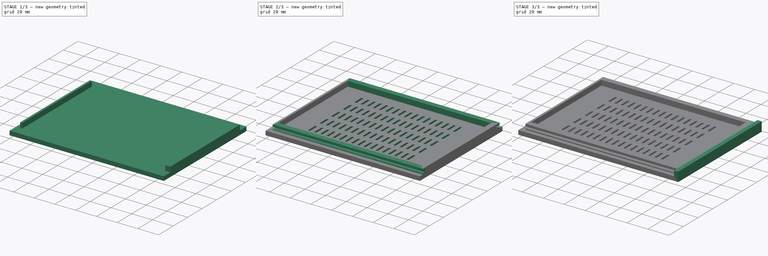
[diagram: build sequence overview — one tinted view per stage of 3, left to right]
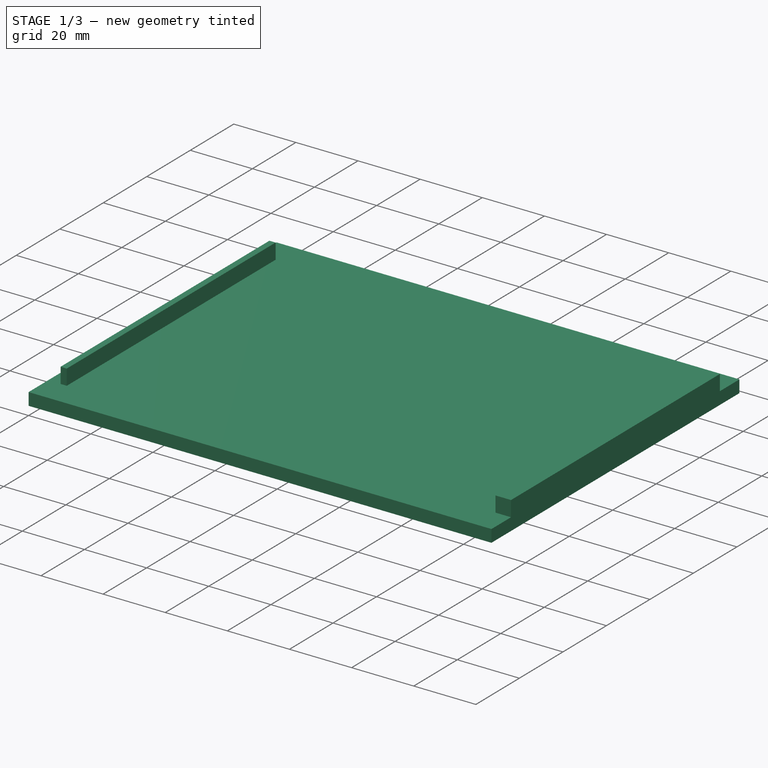
[diagram: stage 1 of 3 — iso view after this stage's code; geometry added in this stage tinted green]
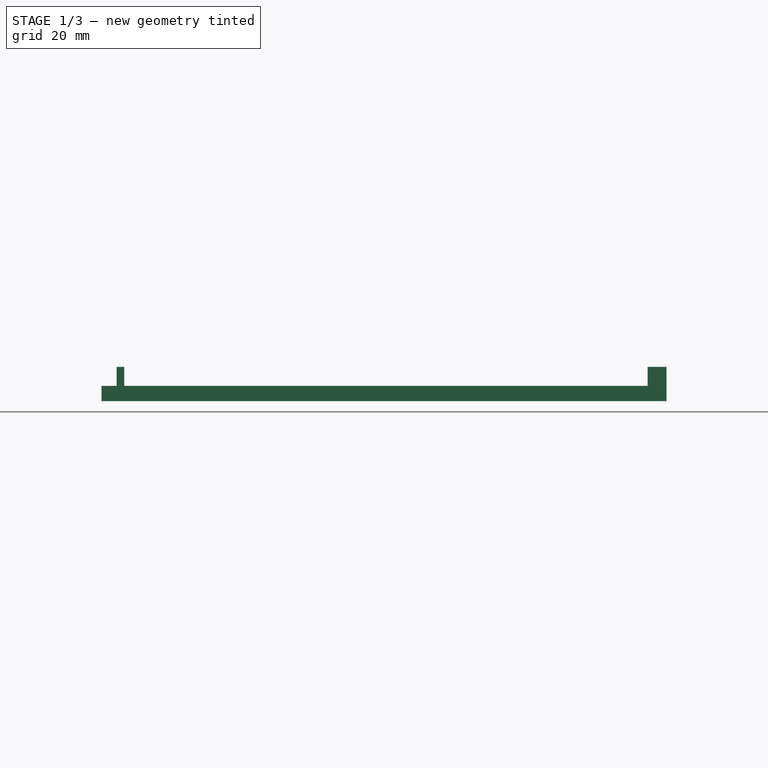
[diagram: stage 1 of 3 — front view after this stage's code; geometry added in this stage tinted green]
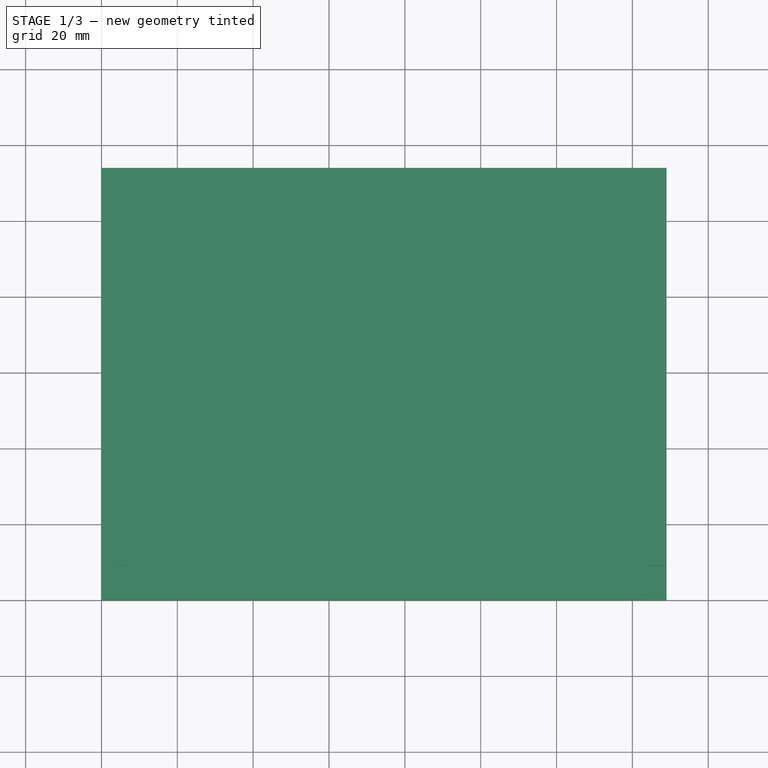
[diagram: stage 1 of 3 — top view after this stage's code; geometry added in this stage tinted green]
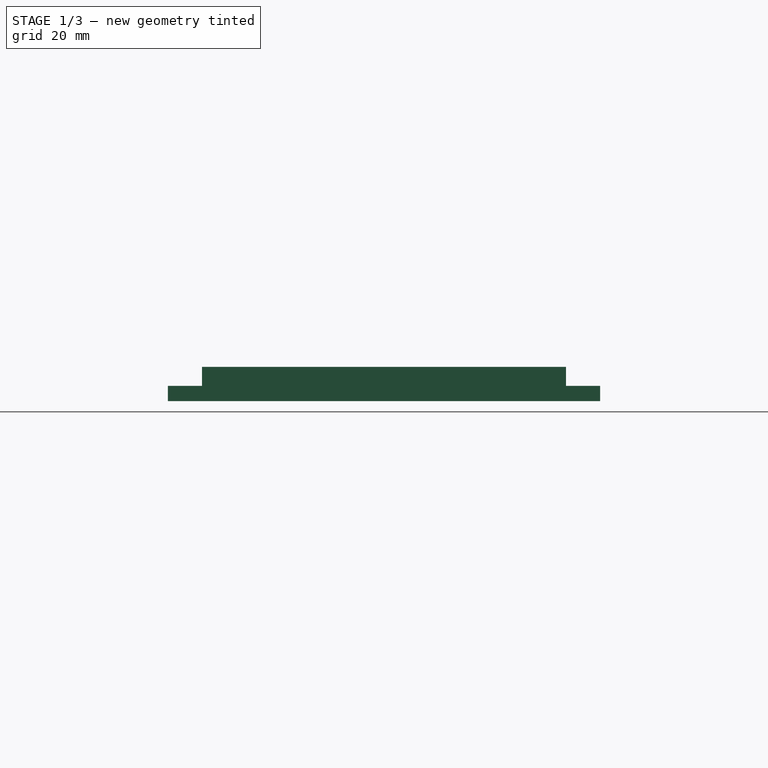
[diagram: stage 1 of 3 — right view after this stage's code; geometry added in this stage tinted green]
FCSTD DOCUMENT  (FreeCAD 1.0R38641 +468 (Git))
Label: Power-Box-Top
License: All rights reserved
LicenseURL: https://en.wikipedia.org/wiki/All_rights_reserved
objects: Sketcher::SketchObject×6, PartDesign::Pad×4, PartDesign::LinearPattern×2, PartDesign::Pocket×2, PartDesign::MultiTransform×1, PartDesign::Body×1
note: 37 computed .brp shape members not serialized (recipe doc carries the construction recipe); baked Part::Feature solids carry a one-line shape summary decoded from their .brp

FEATURE [Sketcher::SketchObject] Sketch152  label="pb-top-plane"
  ArcFitTolerance = 1e-06
  AttachmentSupport = -> [XY_Plane017]
  FullyConstrained = true
  MakeInternals = false
  MapMode = 5
  sketch-geometry (4):
    g0: LineSegment StartX=0 StartY=114 StartZ=0 EndX=0 EndY=0 EndZ=0
    g1: LineSegment StartX=0 StartY=0 StartZ=0 EndX=149 EndY=0 EndZ=0
    g2: LineSegment StartX=149 StartY=0 StartZ=0 EndX=149 EndY=114 EndZ=0
    g3: LineSegment StartX=149 StartY=114 StartZ=0 EndX=0 EndY=114 EndZ=0
  constraints (12):
    c: Coincident(g0,g1)
    c: Coincident(g1,g2)
    c: Coincident(g2,g3)
    c: Coincident(g3,g0)
    c: Vertical(g0)
    c: Vertical(g2)
    c: Horizontal(g1)
    c: Horizontal(g3)
    c: Distance(g0,g2) = 149
    c: Distance(g1,g3) = 114
    c: DistanceX(g-1,g0) = 0
    c: DistanceY(g-1,g0) = 0
FEATURE [PartDesign::Pad] Pad074
  Direction = (0,0,1)
  Length = 4
  Length2 = 10
  Profile = -> Sketch152
  ReferenceAxis = -> Sketch152 [N_Axis]
  Refine = true
  Suppressed = false
  Type = 0
FEATURE [Sketcher::SketchObject] Sketch153  label="pb-top-front-back"
  ArcFitTolerance = 1e-06
  AttachmentSupport = -> [XZ_Plane017]
  FullyConstrained = true
  MakeInternals = false
  MapMode = 5
  Placement = pos=(0,0,0) rot=(1,0,0;1.5708rad)
  sketch-geometry (8):
    g0: LineSegment StartX=4 StartY=9 StartZ=0 EndX=4 EndY=4 EndZ=0
    g1: LineSegment StartX=4 StartY=4 StartZ=0 EndX=6 EndY=4 EndZ=0
    g2: LineSegment StartX=6 StartY=4 StartZ=0 EndX=6 EndY=9 EndZ=0
    g3: LineSegment StartX=6 StartY=9 StartZ=0 EndX=4 EndY=9 EndZ=0
    g4: LineSegment StartX=149 StartY=9 StartZ=0 EndX=149 EndY=4 EndZ=0
    g5: LineSegment StartX=149 StartY=4 StartZ=0 EndX=144 EndY=4 EndZ=0
    g6: LineSegment StartX=144 StartY=4 StartZ=0 EndX=144 EndY=9 EndZ=0
    g7: LineSegment StartX=144 StartY=9 StartZ=0 EndX=149 EndY=9 EndZ=0
  constraints (24):
    c: Coincident(g0,g1)
    c: Coincident(g1,g2)
    c: Coincident(g2,g3)
    c: Coincident(g3,g0)
    c: Vertical(g0)
    c: Vertical(g2)
    c: Horizontal(g1)
    c: Horizontal(g3)
    c: Distance(g0,g2) = 2
    c: Distance(g1,g3) = 5
    c: DistanceX(g-1,g0) = 4
    c: DistanceY(g-1,g0) = 4
    c: Coincident(g4,g5)
    c: Coincident(g5,g6)
    c: Coincident(g6,g7)
    c: Coincident(g7,g4)
    c: Vertical(g4)
    c: Vertical(g6)
    c: Horizontal(g5)
    c: Horizontal(g7)
    c: Distance(g4,g6) = 5
    c: Distance(g5,g7) = 5
    c: DistanceY(g-1,g5) = 4
    c: DistanceX(g-1,g4) = 149
FEATURE [PartDesign::Pad] Pad091
  BaseFeature = -> Pad074
  Direction = (0,-1,2e-16)
  Length = 105
  Length2 = -9
  Profile = -> Sketch153
  ReferenceAxis = -> Sketch153 [N_Axis]
  Refine = true
  Reversed = true
  Suppressed = false
  Type = 4
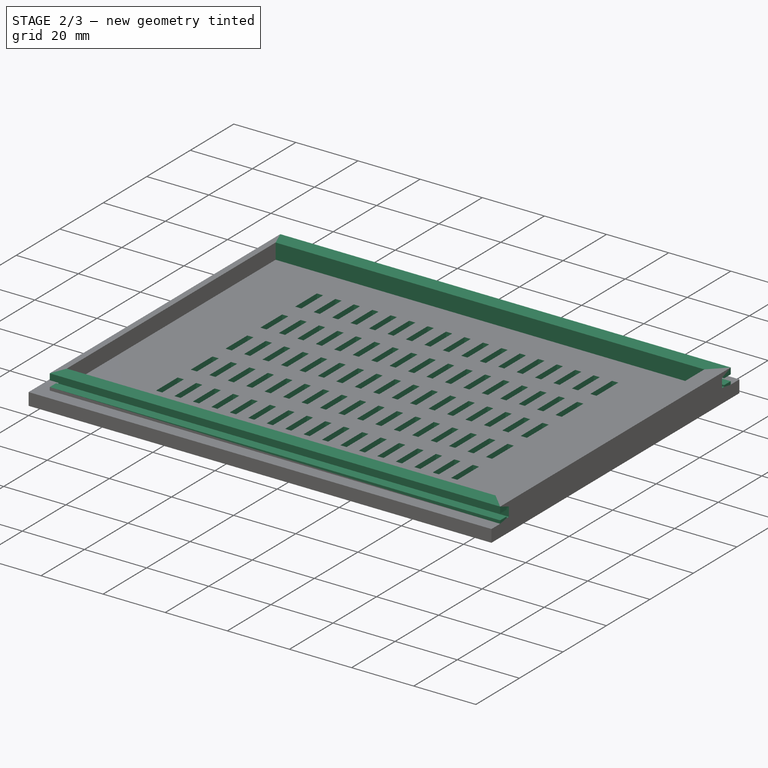
[diagram: stage 2 of 3 — iso view after this stage's code; geometry added in this stage tinted green]
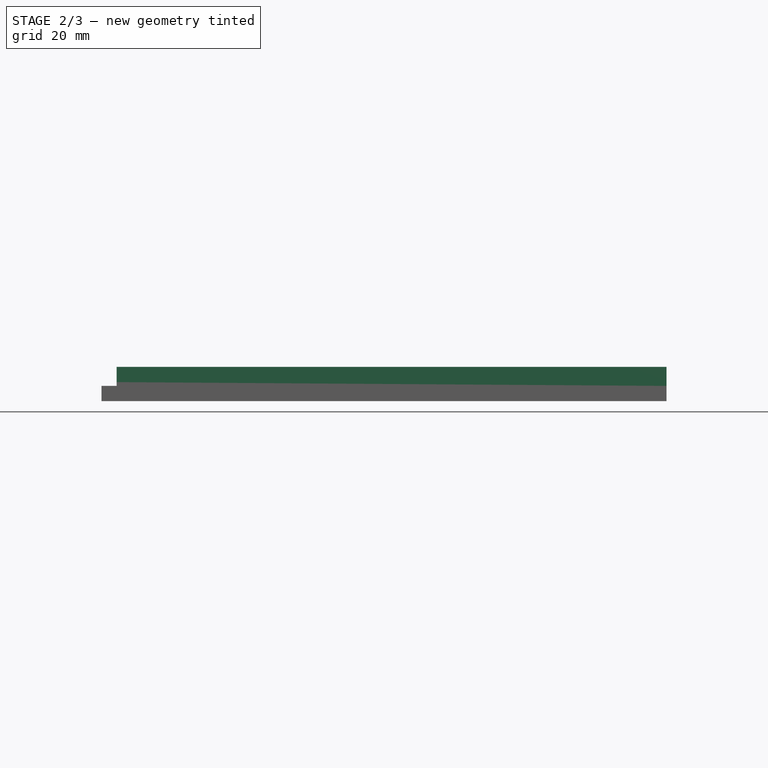
[diagram: stage 2 of 3 — front view after this stage's code; geometry added in this stage tinted green]
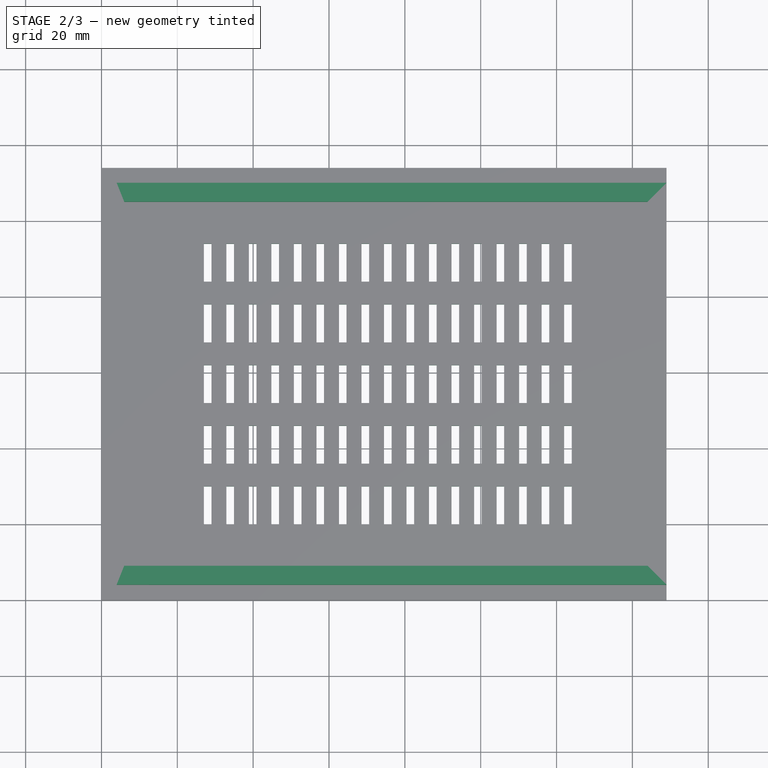
[diagram: stage 2 of 3 — top view after this stage's code; geometry added in this stage tinted green]
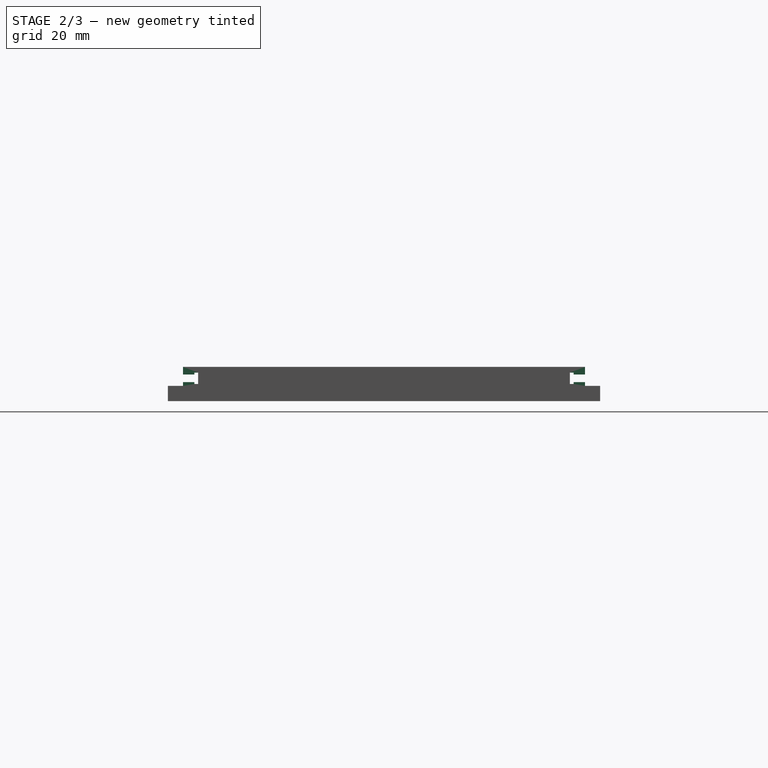
[diagram: stage 2 of 3 — right view after this stage's code; geometry added in this stage tinted green]
FEATURE [Sketcher::SketchObject] Sketch154  label="pb-top-sides"
  ArcFitTolerance = 1e-06
  AttachmentSupport = -> [YZ_Plane017]
  FullyConstrained = true
  MakeInternals = false
  MapMode = 5
  Placement = pos=(0,0,0) rot=(0.57735,0.57735,0.57735;2.0944rad)
  sketch-geometry (24):
    g0: LineSegment StartX=9 StartY=9 StartZ=0 EndX=4 EndY=9 EndZ=0
    g1: LineSegment StartX=4 StartY=9 StartZ=0 EndX=4 EndY=4 EndZ=0
    g2: LineSegment StartX=4 StartY=4 StartZ=0 EndX=9 EndY=4 EndZ=0
    g3: LineSegment StartX=9 StartY=4 StartZ=0 EndX=9 EndY=9 EndZ=0
    g4: LineSegment StartX=110 StartY=9 StartZ=0 EndX=105 EndY=9 EndZ=0
    g5: LineSegment StartX=105 StartY=9 StartZ=0 EndX=105 EndY=4 EndZ=0
    g6: LineSegment StartX=105 StartY=4 StartZ=0 EndX=110 EndY=4 EndZ=0
    g7: LineSegment StartX=110 StartY=4 StartZ=0 EndX=110 EndY=9 EndZ=0
    g8: LineSegment StartX=110 StartY=7 StartZ=0 EndX=107 EndY=7 EndZ=0
    g9: LineSegment StartX=107 StartY=7 StartZ=0 EndX=107 EndY=5 EndZ=0
    g10: LineSegment StartX=107 StartY=5 StartZ=0 EndX=110 EndY=5 EndZ=0
    g11: LineSegment StartX=110 StartY=5 StartZ=0 EndX=110 EndY=7 EndZ=0
    g12: LineSegment StartX=107 StartY=7.5 StartZ=0 EndX=106 EndY=7.5 EndZ=0
    g13: LineSegment StartX=106 StartY=7.5 StartZ=0 EndX=106 EndY=4.5 EndZ=0
    g14: LineSegment StartX=106 StartY=4.5 StartZ=0 EndX=107 EndY=4.5 EndZ=0
    g15: LineSegment StartX=107 StartY=4.5 StartZ=0 EndX=107 EndY=7.5 EndZ=0
    g16: LineSegment StartX=7 StartY=7 StartZ=0 EndX=4 EndY=7 EndZ=0
    g17: LineSegment StartX=4 StartY=7 StartZ=0 EndX=4 EndY=5 EndZ=0
    g18: LineSegment StartX=4 StartY=5 StartZ=0 EndX=7 EndY=5 EndZ=0
    g19: LineSegment StartX=7 StartY=5 StartZ=0 EndX=7 EndY=7 EndZ=0
    g20: LineSegment StartX=8 StartY=7.5 StartZ=0 EndX=7 EndY=7.5 EndZ=0
    g21: LineSegment StartX=7 StartY=7.5 StartZ=0 EndX=7 EndY=4.5 EndZ=0
    g22: LineSegment StartX=7 StartY=4.5 StartZ=0 EndX=8 EndY=4.5 EndZ=0
    g23: LineSegment StartX=8 StartY=4.5 StartZ=0 EndX=8 EndY=7.5 EndZ=0
  constraints (72):
    c: Coincident(g0,g1)
    c: Coincident(g1,g2)
    c: Coincident(g2,g3)
    c: Coincident(g3,g0)
    c: Horizontal(g0)
    c: Horizontal(g2)
    c: Vertical(g1)
    c: Vertical(g3)
    c: Distance(g1,g3) = 5
    c: Distance(g0,g2) = 5
    c: DistanceX(g-1,g1) = 4
    c: DistanceY(g-1,g1) = 4
    c: Coincident(g4,g5)
    c: Coincident(g5,g6)
    c: Coincident(g6,g7)
    c: Coincident(g7,g4)
    c: Horizontal(g4)
    c: Horizontal(g6)
    c: Vertical(g5)
    c: Vertical(g7)
    c: Distance(g5,g7) = 5
    c: Distance(g4,g6) = 5
    c: DistanceX(g-1,g5) = 105
    c: DistanceY(g-1,g6) = 4
    c: Coincident(g8,g9)
    c: Coincident(g9,g10)
    c: Coincident(g10,g11)
    c: Coincident(g11,g8)
    c: Horizontal(g8)
    c: Horizontal(g10)
    c: Vertical(g9)
    c: Vertical(g11)
    c: Distance(g9,g11) = 3
    c: Distance(g8,g10) = 2
    c: Coincident(g12,g13)
    c: Coincident(g13,g14)
    c: Coincident(g14,g15)
    c: Coincident(g15,g12)
    c: Horizontal(g12)
    c: Horizontal(g14)
    c: Vertical(g13)
    c: Vertical(g15)
    c: Distance(g13,g15) = 1
    c: Distance(g12,g14) = 3
    c: DistanceX(g8,g4) = 0
    c: DistanceX(g12,g8) = 0
    c: DistanceY(g14,g9) = 0.5
    c: DistanceY(g6,g10) = 1
    c: Coincident(g16,g17)
    c: Coincident(g17,g18)
    c: Coincident(g18,g19)
    c: Coincident(g19,g16)
    c: Horizontal(g16)
    c: Horizontal(g18)
    c: Vertical(g17)
    c: Vertical(g19)
    c: Distance(g17,g19) = 3
    c: Distance(g16,g18) = 2
    c: Coincident(g20,g21)
    c: Coincident(g21,g22)
    c: Coincident(g22,g23)
    c: Coincident(g23,g20)
    c: Horizontal(g20)
    c: Horizontal(g22)
    c: Vertical(g21)
    c: Vertical(g23)
    c: Distance(g21,g23) = 1
    c: Distance(g20,g22) = 3
    c: DistanceY(g1,g17) = 1
    c: DistanceY(g16,g20) = 0.5
    c: DistanceX(g1,g16) = 0
    c: DistanceX(g16,g20) = 0
FEATURE [PartDesign::Pad] Pad092
  BaseFeature = -> Pad091
  Direction = (1,0,0)
  Length = 149
  Length2 = -4
  Profile = -> Sketch154
  ReferenceAxis = -> Sketch154 [N_Axis]
  Refine = true
  Suppressed = false
  Type = 4
FEATURE [Sketcher::SketchObject] Sketch157  label="pb-top-mazgal"
  ArcFitTolerance = 1e-06
  AttachmentSupport = -> [XY_Plane017]
  FullyConstrained = true
  MakeInternals = false
  MapMode = 5
  sketch-geometry (4):
    g0: LineSegment StartX=122 StartY=94 StartZ=0 EndX=122 EndY=84 EndZ=0
    g1: LineSegment StartX=122 StartY=84 StartZ=0 EndX=124 EndY=84 EndZ=0
    g2: LineSegment StartX=124 StartY=84 StartZ=0 EndX=124 EndY=94 EndZ=0
    g3: LineSegment StartX=124 StartY=94 StartZ=0 EndX=122 EndY=94 EndZ=0
  constraints (12):
    c: Coincident(g0,g1)
    c: Coincident(g1,g2)
    c: Coincident(g2,g3)
    c: Coincident(g3,g0)
    c: Vertical(g0)
    c: Vertical(g2)
    c: Horizontal(g1)
    c: Horizontal(g3)
    c: Distance(g0,g2) = 2
    c: Distance(g1,g3) = 10
    c: DistanceX(g-1,g0) = 122
    c: DistanceY(g-1,g0) = 94
FEATURE [PartDesign::LinearPattern] LinearPattern006
  Direction = -> Sketch157 [H_Axis]
  Length = 95
  Mode = 0
  Occurrences = 17
  Offset = 5.9375
  Refine = true
  Reversed = true
  Suppressed = false
  TransformMode = 0
FEATURE [PartDesign::LinearPattern] LinearPattern007
  Direction = -> Sketch157 [V_Axis]
  Length = 64
  Mode = 0
  Occurrences = 5
  Offset = 16
  Refine = true
  Reversed = true
  Suppressed = false
  TransformMode = 0
FEATURE [PartDesign::Pocket] Pocket111
  BaseFeature = -> Pad092
  Direction = (0,0,-1)
  Length = 5
  Length2 = 5
  Profile = -> Sketch157
  ReferenceAxis = -> Sketch157 [N_Axis]
  Refine = true
  Reversed = true
  Suppressed = false
  Type = 0
FEATURE [PartDesign::MultiTransform] MultiTransform003
  BaseFeature = -> Pocket111
  Originals = -> [Pocket111]
  Refine = true
  Suppressed = false
  TransformMode = 0
  Transformations = -> [LinearPattern006,LinearPattern007]
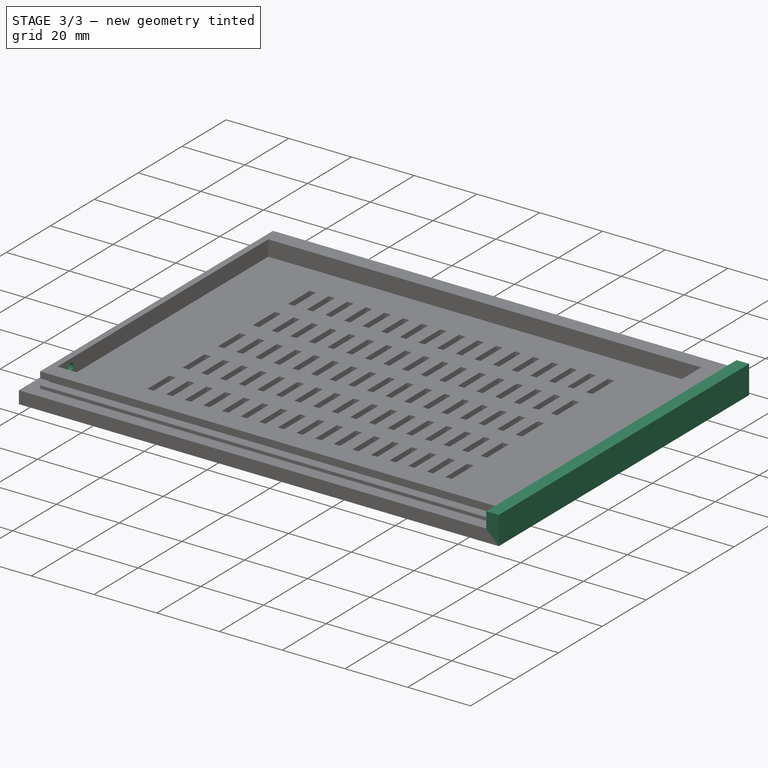
[diagram: stage 3 of 3 — iso view after this stage's code; geometry added in this stage tinted green]
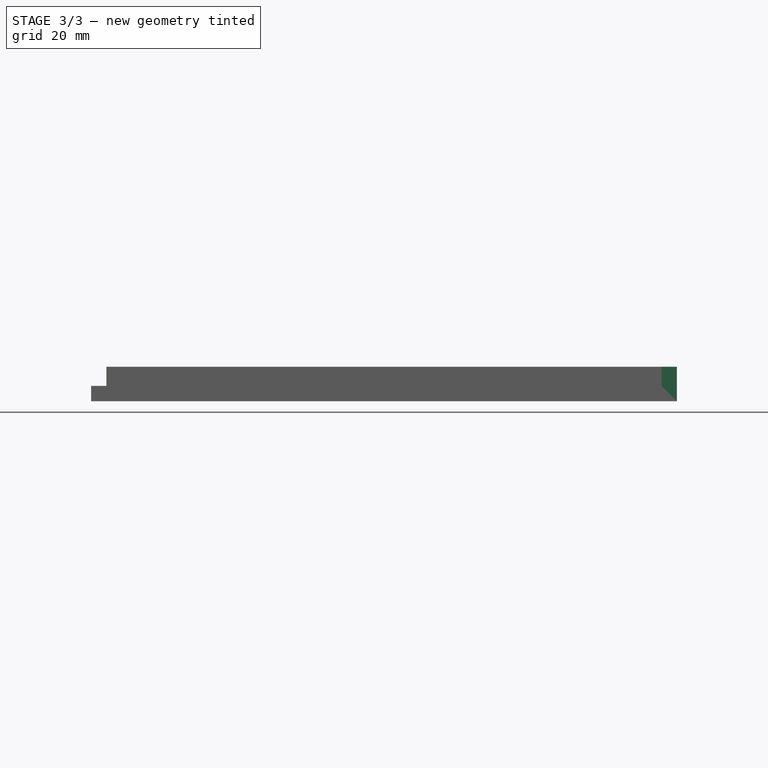
[diagram: stage 3 of 3 — front view after this stage's code; geometry added in this stage tinted green]
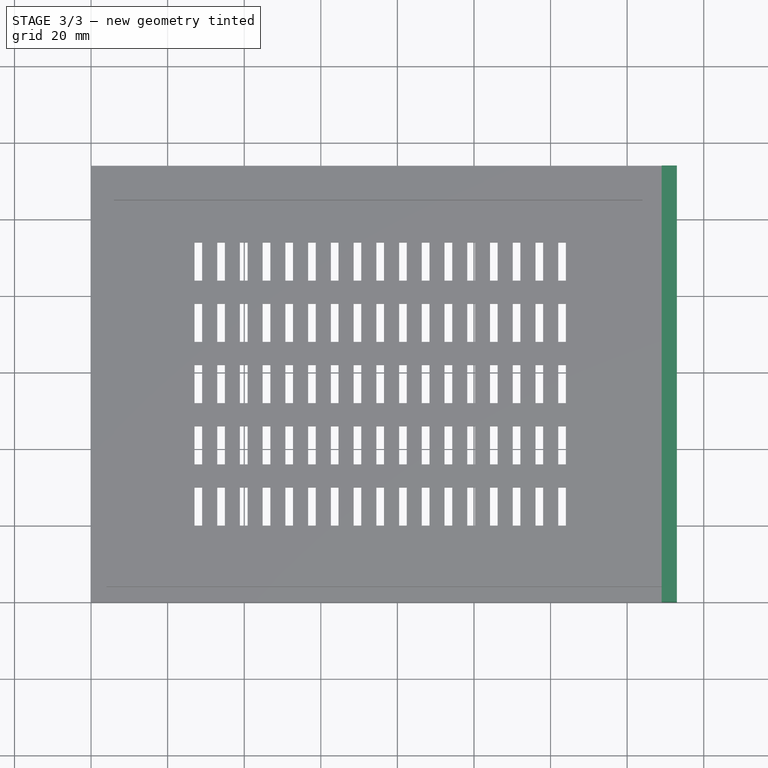
[diagram: stage 3 of 3 — top view after this stage's code; geometry added in this stage tinted green]
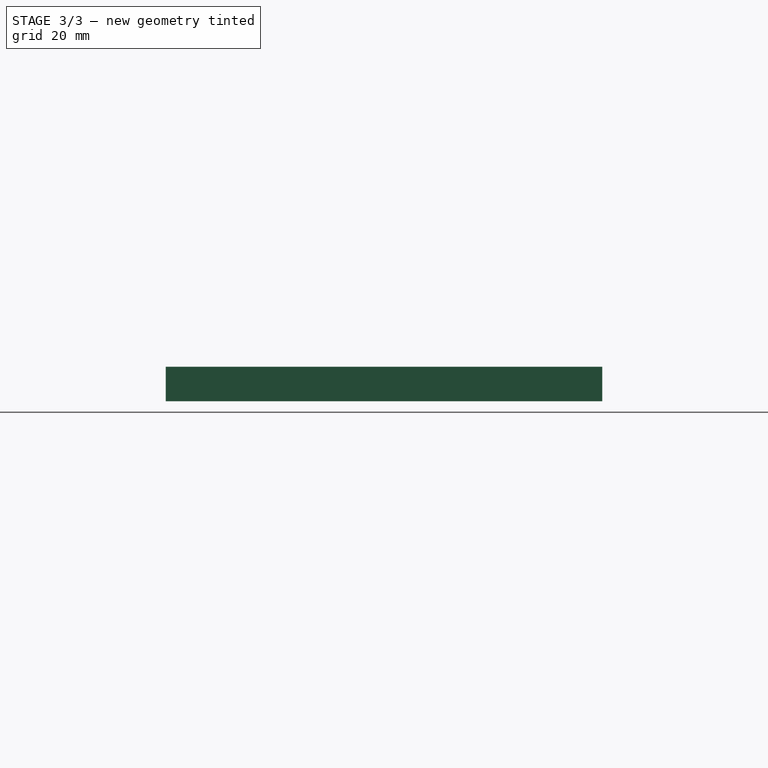
[diagram: stage 3 of 3 — right view after this stage's code; geometry added in this stage tinted green]
FEATURE [Sketcher::SketchObject] Sketch
  ArcFitTolerance = 1e-06
  AttachmentSupport = -> [XZ_Plane017]
  FullyConstrained = true
  MakeInternals = false
  MapMode = 5
  Placement = pos=(0,0,0) rot=(1,0,0;1.5708rad)
  sketch-geometry (4):
    g0: LineSegment StartX=149 StartY=9 StartZ=0 EndX=149 EndY=0 EndZ=0
    g1: LineSegment StartX=149 StartY=0 StartZ=0 EndX=153 EndY=0 EndZ=0
    g2: LineSegment StartX=153 StartY=0 StartZ=0 EndX=153 EndY=9 EndZ=0
    g3: LineSegment StartX=153 StartY=9 StartZ=0 EndX=149 EndY=9 EndZ=0
  constraints (12):
    c: Coincident(g0,g1)
    c: Coincident(g1,g2)
    c: Coincident(g2,g3)
    c: Coincident(g3,g0)
    c: Vertical(g0)
    c: Vertical(g2)
    c: Horizontal(g1)
    c: Horizontal(g3)
    c: Distance(g0,g2) = 4
    c: Distance(g1,g3) = 9
    c: DistanceY(g0,g-1) = 0
    c: DistanceX(g-1,g0) = 149
FEATURE [PartDesign::Pad] Pad
  BaseFeature = -> MultiTransform003
  Direction = (0,-1,2e-16)
  Length = 114
  Length2 = 10
  Profile = -> Sketch
  ReferenceAxis = -> Sketch [N_Axis]
  Refine = true
  Reversed = true
  Suppressed = false
  Type = 0
FEATURE [Sketcher::SketchObject] Sketch158
  ArcFitTolerance = 1e-06
  AttachmentSupport = -> [YZ_Plane017]
  FullyConstrained = true
  MakeInternals = false
  MapMode = 5
  Placement = pos=(0,0,0) rot=(0.57735,0.57735,0.57735;2.0944rad)
  sketch-geometry (1):
    g0: Circle CenterX=15 CenterY=6.5 CenterZ=0 NormalX=0 NormalY=0 NormalZ=1 AngleXU=0 Radius=1.25
  constraints (3):
    c: Diameter(g0) = 2.5
    c: DistanceX(g-1,g0) = 15
    c: DistanceY(g-1,g0) = 6.5
FEATURE [PartDesign::Pocket] Pocket
  BaseFeature = -> Pad
  Direction = (-1,0,0)
  Length = 6
  Length2 = 5
  Profile = -> Sketch158
  ReferenceAxis = -> Sketch158 [N_Axis]
  Refine = true
  Reversed = true
  Suppressed = false
  Type = 0
FEATURE [PartDesign::Body] Body017  label="Power-Box-Top"
  AllowCompound = false
  Group = -> [Sketch152,Pad074,Sketch153,Sketch154,Sketch157,Pad091,Pad092,Pocket111,MultiTransform003,LinearPattern006,LinearPattern007,Sketch,Pad,Sketch158,Pocket]
  Origin = -> Origin017
  Tip = -> Pocket
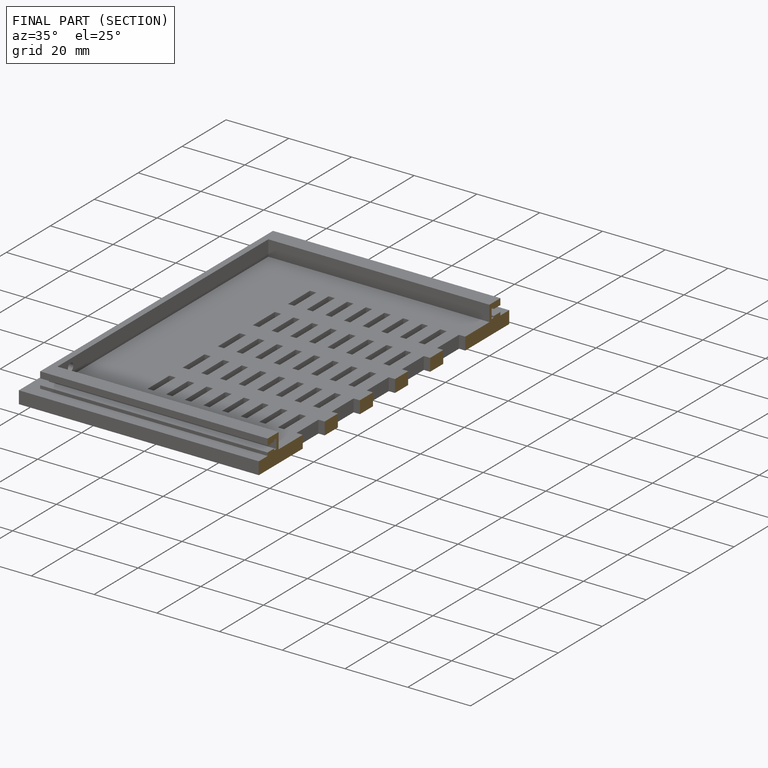
[diagram: finished part — half-section view (interior)]
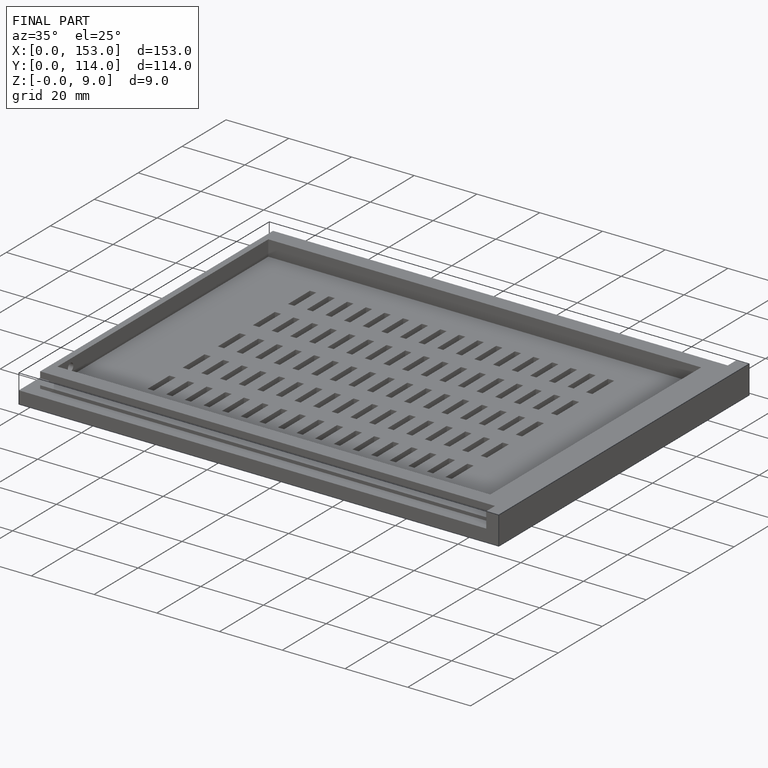
[diagram: finished part — iso view with bounding-box wireframe]
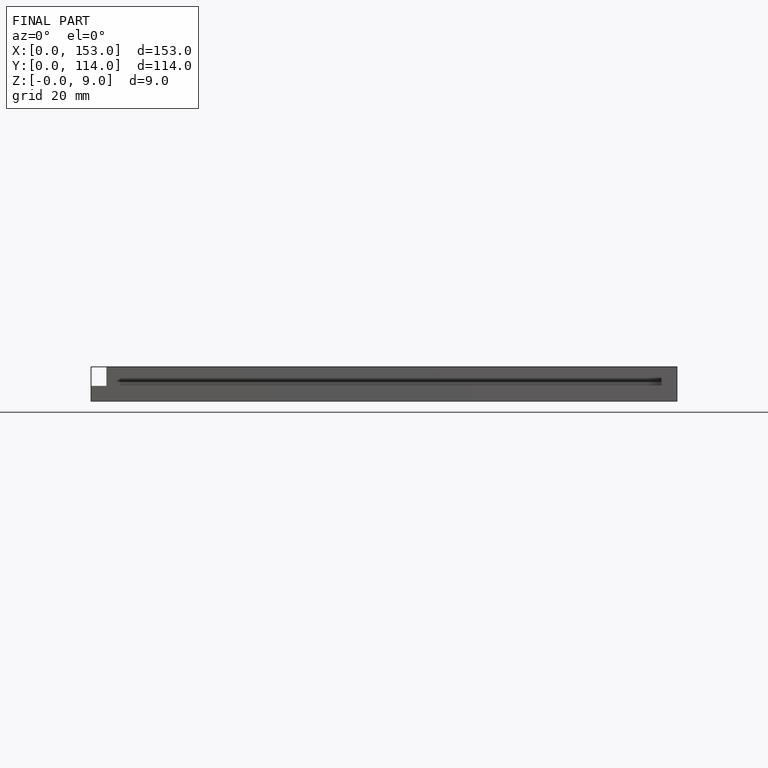
[diagram: finished part — front view with bounding-box wireframe]
